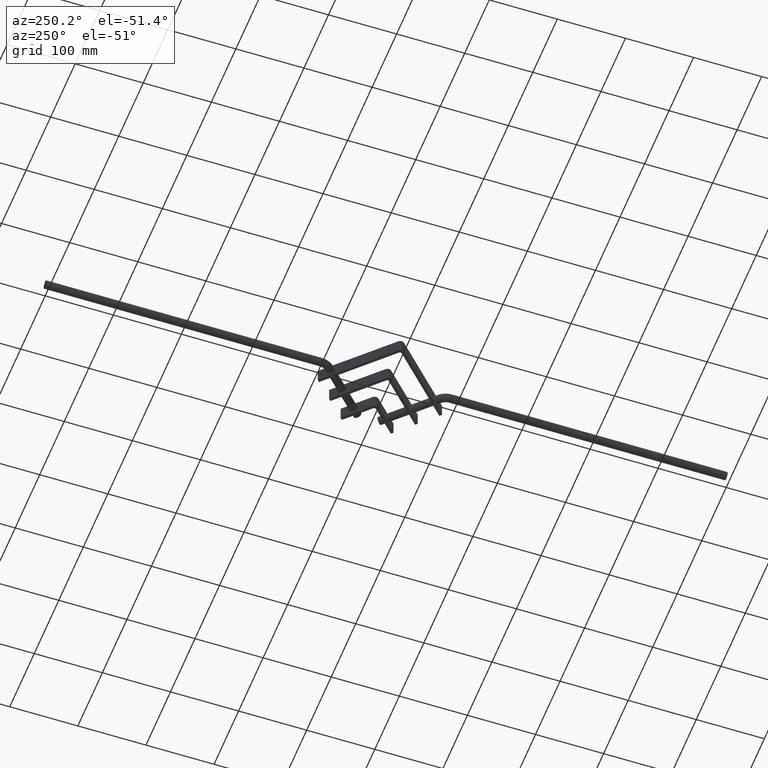
[diagram: clean part render]
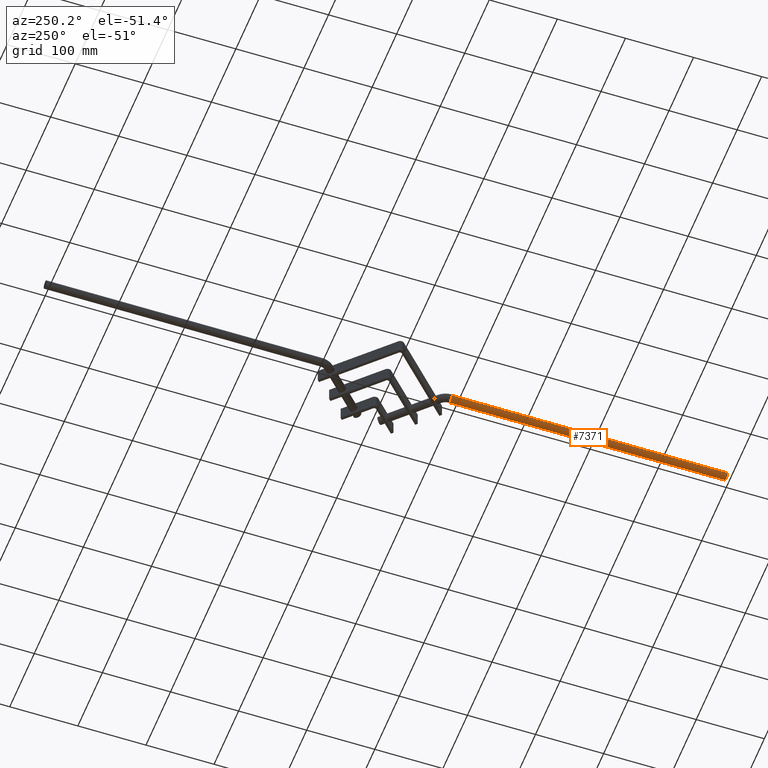
[diagram: same view with one face highlighted and labeled with its STEP entity id]
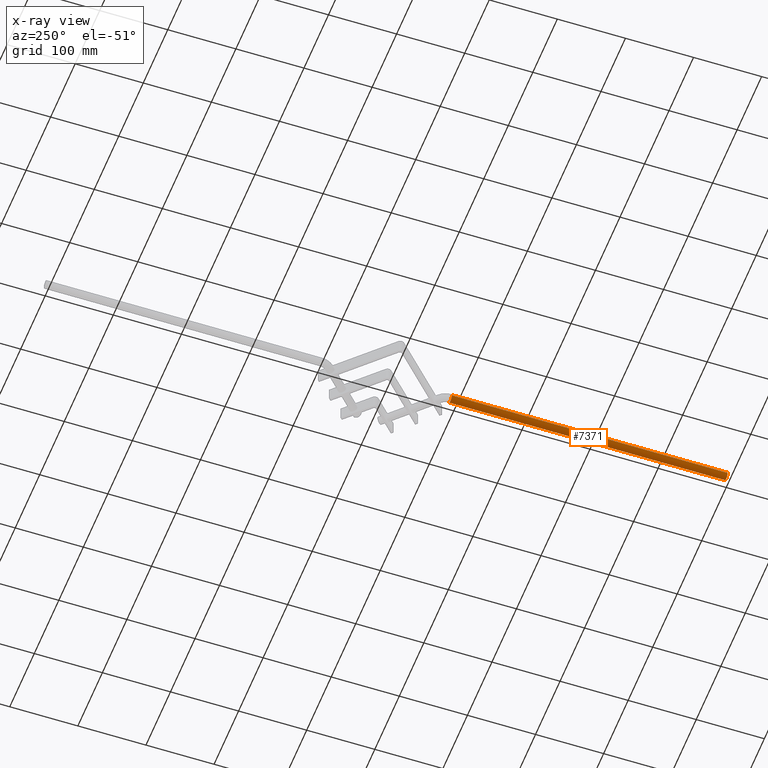
[diagram: x-ray of the same camera — body ghosted, the highlighted face saturated]
A machine part, auxiliary view. The second image highlights one B-rep face of the part: STEP entity #7371.
The next image is the same camera in x-ray: the body ghosted, the highlighted face saturated — about 0% of this face is hidden behind the body in this view.
In plain terms, the highlighted cylindrical surface (edge-blend (fillet) strip) has radius 6 mm, axis along (-0, -1, -0).
Its self-contained STEP definition (entity closure, byte-faithful):
#79 = LINE ( 'NONE', #3673, #7457 ) ;
#116 = ORIENTED_EDGE ( 'NONE', *, *, #6892, .F. ) ;
#322 = AXIS2_PLACEMENT_3D ( 'NONE', #856, #5579, #6150 ) ;
#410 = AXIS2_PLACEMENT_3D ( 'NONE', #4140, #618, #4725 ) ;
#618 = DIRECTION ( 'NONE',  ( 0.0000000000000000000, 1.000000000000000000, 0.0000000000000000000 ) ) ;
#771 = VECTOR ( 'NONE', #6285, 1000.000000000000000 ) ;
#856 = CARTESIAN_POINT ( 'NONE',  ( 1.414049942231469200E-012, 405.0000000000000000, 0.0000000000000000000 ) ) ;
#1060 = CARTESIAN_POINT ( 'NONE',  ( 6.000000000001414900, 405.0000000000000000, 0.0000000000000000000 ) ) ;
#1112 = ORIENTED_EDGE ( 'NONE', *, *, #6113, .F. ) ;
#1140 = CIRCLE ( 'NONE', #410, 6.000000000000000900 ) ;
#1402 = FACE_OUTER_BOUND ( 'NONE', #5906, .T. ) ;
#1465 = VERTEX_POINT ( 'NONE', #2817 ) ;
#2001 = DIRECTION ( 'NONE',  ( 0.0000000000000000000, 1.000000000000000000, 0.0000000000000000000 ) ) ;
#2817 = CARTESIAN_POINT ( 'NONE',  ( -5.999999999998586900, 405.0000000000000000, 7.347880794884120700E-016 ) ) ;
#2843 = AXIS2_PLACEMENT_3D ( 'NONE', #5441, #2001, #6013 ) ;
#3027 = EDGE_CURVE ( 'NONE', #4737, #5174, #6960, .T. ) ;
#3655 = CARTESIAN_POINT ( 'NONE',  ( -6.000000000000001800, 0.0000000000000000000, 7.347880794884986500E-016 ) ) ;
#3673 = CARTESIAN_POINT ( 'NONE',  ( -5.999999999998586900, 405.0000000000000000, 7.347880794884120700E-016 ) ) ;
#3961 = CYLINDRICAL_SURFACE ( 'NONE', #322, 6.000000000000000900 ) ;
#4022 = ORIENTED_EDGE ( 'NONE', *, *, #5928, .T. ) ;
#4140 = CARTESIAN_POINT ( 'NONE',  ( 0.0000000000000000000, 0.0000000000000000000, 0.0000000000000000000 ) ) ;
#4553 = CARTESIAN_POINT ( 'NONE',  ( 6.000000000000000900, 0.0000000000000000000, 0.0000000000000000000 ) ) ;
#4691 = CIRCLE ( 'NONE', #2843, 6.000000000000000900 ) ;
#4725 = DIRECTION ( 'NONE',  ( 0.0000000000000000000, 0.0000000000000000000, 1.000000000000000000 ) ) ;
#4737 = VERTEX_POINT ( 'NONE', #5807 ) ;
#5174 = VERTEX_POINT ( 'NONE', #4553 ) ;
#5441 = CARTESIAN_POINT ( 'NONE',  ( 1.414049942231469200E-012, 405.0000000000000000, 0.0000000000000000000 ) ) ;
#5446 = VERTEX_POINT ( 'NONE', #3655 ) ;
#5579 = DIRECTION ( 'NONE',  ( -3.491481338843133400E-015, -1.000000000000000000, -0.0000000000000000000 ) ) ;
#5807 = CARTESIAN_POINT ( 'NONE',  ( 6.000000000001415800, 405.0000000000000000, 0.0000000000000000000 ) ) ;
#5813 = ORIENTED_EDGE ( 'NONE', *, *, #3027, .T. ) ;
#5906 = EDGE_LOOP ( 'NONE', ( #116, #1112, #5813, #4022 ) ) ;
#5928 = EDGE_CURVE ( 'NONE', #5174, #5446, #1140, .T. ) ;
#6013 = DIRECTION ( 'NONE',  ( 0.0000000000000000000, 0.0000000000000000000, 1.000000000000000000 ) ) ;
#6113 = EDGE_CURVE ( 'NONE', #4737, #1465, #4691, .T. ) ;
#6150 = DIRECTION ( 'NONE',  ( 1.000000000000000000, 0.0000000000000000000, 0.0000000000000000000 ) ) ;
#6285 = DIRECTION ( 'NONE',  ( -3.491481338843133400E-015, -1.000000000000000000, -0.0000000000000000000 ) ) ;
#6546 = DIRECTION ( 'NONE',  ( -3.491481338843133400E-015, -1.000000000000000000, -0.0000000000000000000 ) ) ;
#6892 = EDGE_CURVE ( 'NONE', #1465, #5446, #79, .T. ) ;
#6960 = LINE ( 'NONE', #1060, #771 ) ;
#7371 = ADVANCED_FACE ( 'NONE', ( #1402 ), #3961, .T. ) ;
#7457 = VECTOR ( 'NONE', #6546, 1000.000000000000000 ) ;